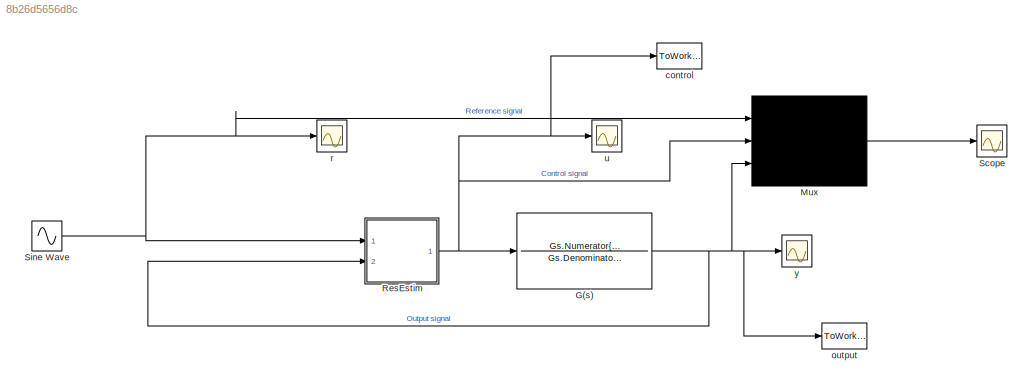
MODEL slx_8b26d5656d8c
KIND model
CONFIG AbsTol = auto
CONFIG EnableMultiTasking = off
CONFIG FixedStep = auto
CONFIG MaxStep = auto
CONFIG MinStep = auto
CONFIG RelTol = 1e-3
CONFIG SampleTimeConstraint = Unconstrained
CONFIG Solver = VariableStepAuto
CONFIG SolverName = VariableStepAuto
CONFIG StartTime = 0.0
CONFIG StopTime = tSim
BLOCK [TransferFcn] G(s)
  Denominator = Gs.Denominator{1,1}
  Numerator = Gs.Numerator{1,1}
BLOCK [Mux] Mux
  DisplayOption = signals
  Inputs = 3
  Ports = [3, 1]
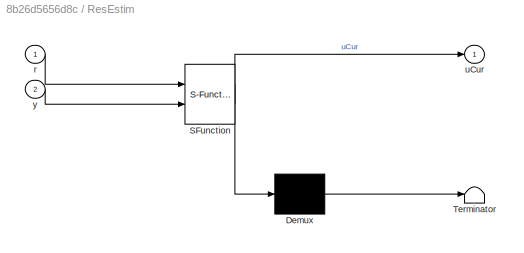
BLOCK [SubSystem] ResEstim 
  ErrorFcn = Stateflow.Translate.translate
  PermitHierarchicalResolution = ExplicitOnly
  Ports = [2, 1]
  RequestExecContextInheritance = off
  SFBlockType = MATLAB Function
  TreatAsAtomicUnit = on
BLOCK [Demux] ResEstim / Demux 
  Outputs = 1
  Ports = [1, 1]
BLOCK [S-Function] ResEstim / SFunction 
  EnableBusSupport = on
  FunctionName = sf_sfun
  Parameters = K1,a,deltat,gamma1,gamma2,umax,umin,w0,wn,zeta
  PortCounts = [2 2]
  Ports = [2, 2]
  SFcnIsStateOwnerBlock = off
  SFunctionDeploymentMode = off
  Tag = Stateflow S-Function 1
BLOCK [Terminator] ResEstim / Terminator 
BLOCK [Inport] ResEstim /r
  IconDisplay = Port number
BLOCK [Outport] ResEstim /uCur
  IconDisplay = Port number
BLOCK [Inport] ResEstim /y
  IconDisplay = Port number
  Port = 2
BLOCK [Scope] Scope
  Floating = off
  NumInputPorts = 1
  Ports = [1]
  ScopeSpecificationString = Simulink.scopes.TimeScopeBlockCfg('CurrentConfiguration', extmgr.ConfigurationSet(extmgr.Configuration('Core','General UI',true),extmgr.Configuration('Core','Source UI',true),extmgr.Configuration('Sources','WiredSimulink',true,'DataLoggingVariableName','data','DataLogging',true,'DataLoggingSaveFormat','StructureWithTime'),extmgr.Configuration('Visuals','Time Domain',true,'SerializedDisplays',{stru...<+1523ch>
BLOCK [Sin] Sine Wave
  Amplitude = amplitude
  Bias = shift
  Frequency = w0
  Ports = [0, 1]
  SampleTime = deltat
BLOCK [ToWorkspace] control
  MaxDataPoints = 10000
  Ports = [1]
  VariableName = u
BLOCK [ToWorkspace] output
  MaxDataPoints = 10000
  Ports = [1]
  VariableName = y
BLOCK [Scope] r
  Floating = off
  NumInputPorts = 1
  Ports = [1]
  ScopeSpecificationString = Simulink.scopes.TimeScopeBlockCfg('CurrentConfiguration', extmgr.ConfigurationSet(extmgr.Configuration('Core','General UI',true),extmgr.Configuration('Core','Source UI',true),extmgr.Configuration('Sources','WiredSimulink',true,'DataLoggingVariableName','ScopeData2'),extmgr.Configuration('Visuals','Time Domain',true,'SerializedDisplays',{struct('MinYLimReal','-1.75','MaxYLimReal','5.75','YLabelReal...<+1387ch>
BLOCK [Scope] u
  Floating = off
  NumInputPorts = 1
  Ports = [1]
  ScopeSpecificationString = Simulink.scopes.TimeScopeBlockCfg('CurrentConfiguration', extmgr.ConfigurationSet(extmgr.Configuration('Core','General UI',true),extmgr.Configuration('Core','Source UI',true),extmgr.Configuration('Sources','WiredSimulink',true),extmgr.Configuration('Visuals','Time Domain',true,'SerializedDisplays',{struct('MinYLimReal','-2.79062','MaxYLimReal','10.08785','YLabelReal','','MinYLimMag','0.00000','Max...<+1394ch>
BLOCK [Scope] y
  Floating = off
  NumInputPorts = 1
  Ports = [1]
  ScopeSpecificationString = Simulink.scopes.TimeScopeBlockCfg('CurrentConfiguration', extmgr.ConfigurationSet(extmgr.Configuration('Core','General UI',true),extmgr.Configuration('Core','Source UI',true),extmgr.Configuration('Sources','WiredSimulink',true,'DataLoggingVariableName','ScopeData3'),extmgr.Configuration('Visuals','Time Domain',true,'SerializedDisplays',{struct('MinYLimReal','-1.75696','MaxYLimReal','5.75696','YLab...<+1428ch>
NET G(s):1 -> Mux:3, ResEstim :2, output:1, y:1
LINE Mux:1 -> Scope:1
NET ResEstim :1 -> G(s):1, Mux:2, control:1, u:1
NET Sine Wave:1 -> Mux:1, ResEstim :1, r:1
note: NET lines group one-source signal fan-out (src -> all destinations, sorted); 1:1 wires keep LINE
CHART ResEstim
 states=1 transitions=1
  STATE_LABEL 'eML_blk_kernel()'
  STATE_LABEL 'SCRIPT:\nfunction uCur =ResEstim(r,y,K1, gamma1, gamma2, zeta, wn, a, w0, deltat, umin, umax)\npersistent zhat1\nif isempty(zhat1)\nzhat1=0;\nend\npersistent zhat2\nif isempty(zhat2)\nzhat2=0;\nend\n\ncz1=a*gamma1 - 2*zeta*wn*gamma1+gamma2;\ncz2=2*zeta*wn;\n\ndhat=zhat1+gamma1*(y-r);\nuCur= -K1*(y-r)-dhat;\n\nif (uCur>umax) uCur=umax;end\nif (uCur<umin) uCur=umin;end\n\nzhat1=zhat1+deltat*((-cz2*zhat1+zhat2)+cz1*(y-r...<+92ch>'
